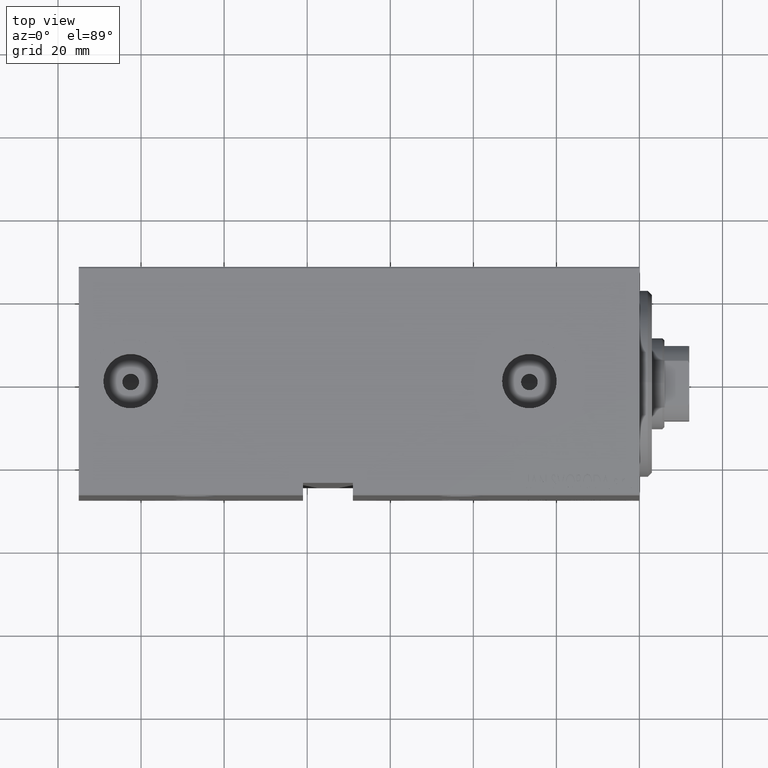
[diagram: clean part render]
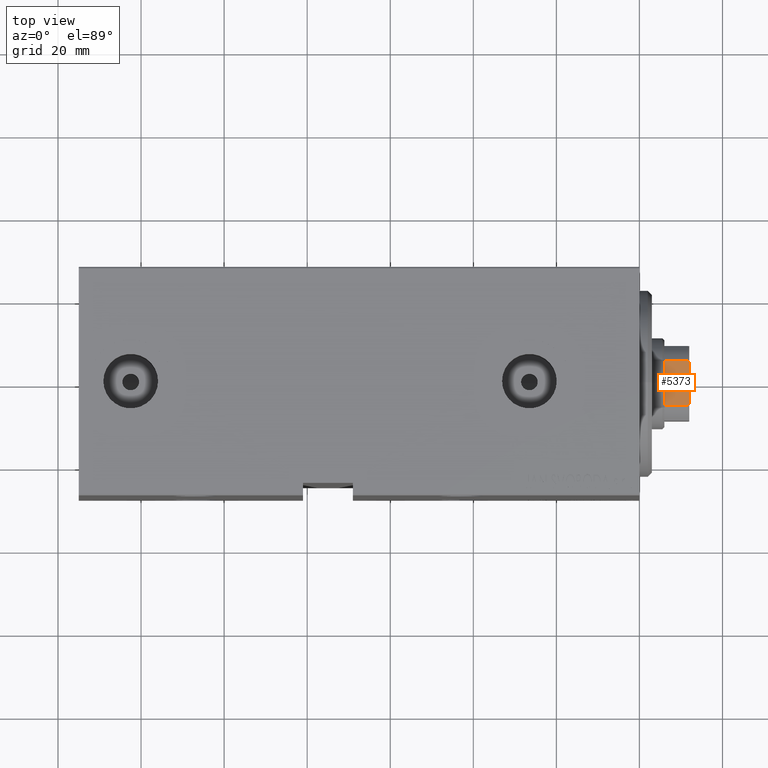
[diagram: same view with one face highlighted and labeled with its STEP entity id]
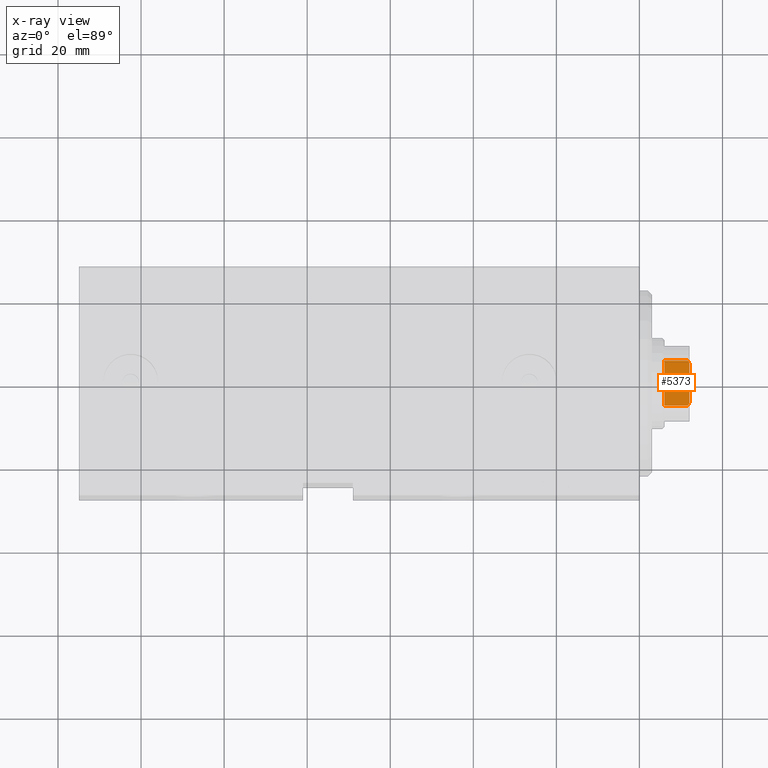
[diagram: x-ray of the same camera — body ghosted, the highlighted face saturated]
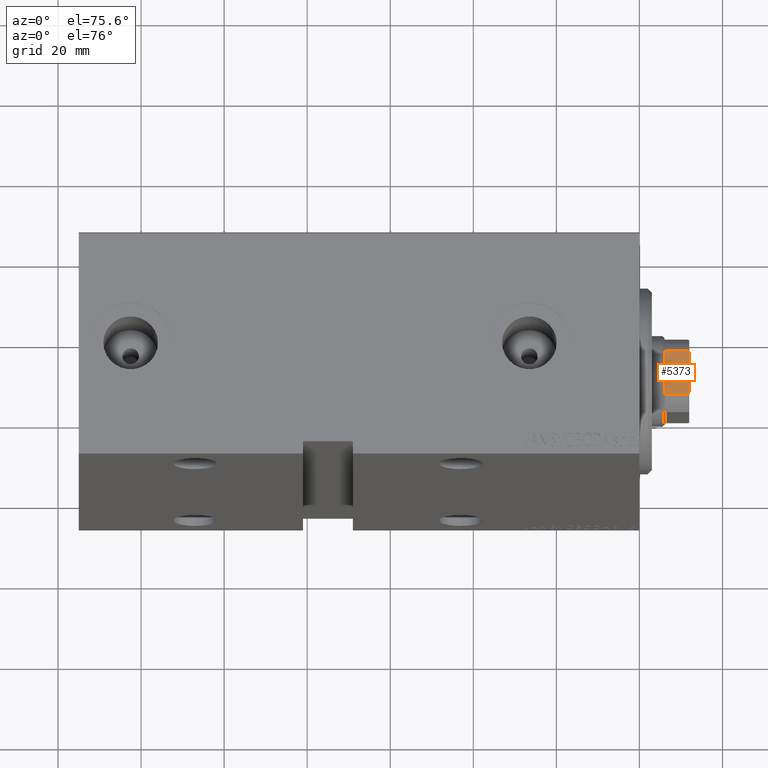
[diagram: same view with one face highlighted and labeled with its STEP entity id]
A machine part, top view. The second image highlights one B-rep face of the part: STEP entity #5373.
The next image is the same camera in x-ray: the body ghosted, the highlighted face saturated — about 0% of this face is hidden behind the body in this view.
A second angle (auxiliary view) of the same face is appended — the face is thin or edge-on in the first view.
In plain terms, the highlighted planar face has unit normal (-0, 0, -1).
Its self-contained STEP definition (entity closure, byte-faithful):
#1400 = VERTEX_POINT ( 'NONE', #24593 ) ;
#1778 = CARTESIAN_POINT ( 'NONE',  ( -8.999999999999998224, -4.799999999999915445, 137.0000000000000000 ) ) ;
#1904 = CARTESIAN_POINT ( 'NONE',  ( -9.000000000000001776, 4.799999999999957190, 137.0000000000000000 ) ) ;
#2665 = LINE ( 'NONE', #25762, #9990 ) ;
#3485 = EDGE_CURVE ( 'NONE', #12508, #26127, #2665, .T. ) ;
#4550 = CARTESIAN_POINT ( 'NONE',  ( -8.999999999999998224, -5.004607318780252001, 136.9037142029269205 ) ) ;
#5039 = VERTEX_POINT ( 'NONE', #1904 ) ;
#5199 = EDGE_CURVE ( 'NONE', #14898, #31492, #31317, .T. ) ;
#5373 = ADVANCED_FACE ( 'NONE', ( #9447 ), #17060, .F. ) ;
#5375 = CARTESIAN_POINT ( 'NONE',  ( -8.999999999999998224, 5.408326913195988794, -0.001000000000001000089 ) ) ;
#7232 = DIRECTION ( 'NONE',  ( -0.000000000000000000, -0.000000000000000000, 1.000000000000000000 ) ) ;
#8518 = VECTOR ( 'NONE', #15903, 1000.000000000000000 ) ;
#9447 = FACE_OUTER_BOUND ( 'NONE', #40251, .T. ) ;
#9596 = CARTESIAN_POINT ( 'NONE',  ( -9.000000000000000000, -5.408326913195987018, 136.6999999999999602 ) ) ;
#9664 = CARTESIAN_POINT ( 'NONE',  ( -8.999999999999998224, 5.408326913195988794, 136.6999999999999886 ) ) ;
#9979 = LINE ( 'NONE', #37900, #39284 ) ;
#9990 = VECTOR ( 'NONE', #43189, 1000.000000000000000 ) ;
#12508 = VERTEX_POINT ( 'NONE', #13112 ) ;
#13112 = CARTESIAN_POINT ( 'NONE',  ( -8.999999999999998224, 5.408326913195986130, 130.9999999999999716 ) ) ;
#13936 = ORIENTED_EDGE ( 'NONE', *, *, #39015, .T. ) ;
#14860 = CARTESIAN_POINT ( 'NONE',  ( -9.000000000000000000, -5.408326913195987018, 136.6999999999999602 ) ) ;
#14898 = VERTEX_POINT ( 'NONE', #9596 ) ;
#15903 = DIRECTION ( 'NONE',  ( -0.000000000000000000, -0.000000000000000000, 1.000000000000000000 ) ) ;
#17060 = PLANE ( 'NONE',  #39366 ) ;
#17457 = ORIENTED_EDGE ( 'NONE', *, *, #18744, .T. ) ;
#18439 = CARTESIAN_POINT ( 'NONE',  ( -8.999999999999998224, -4.799999999999915445, 137.0000000000000000 ) ) ;
#18744 = EDGE_CURVE ( 'NONE', #5039, #1400, #29214, .T. ) ;
#19623 = CARTESIAN_POINT ( 'NONE',  ( -9.000000000000000000, -5.408326913195987018, 130.9999999999999716 ) ) ;
#19753 = DIRECTION ( 'NONE',  ( 1.000000000000000000, 1.927470528863119049E-16, -0.000000000000000000 ) ) ;
#21142 = CARTESIAN_POINT ( 'NONE',  ( -9.000000000000000000, -5.207299490555445942, 136.8035449543006621 ) ) ;
#22411 = LINE ( 'NONE', #5375, #8518 ) ;
#24010 = DIRECTION ( 'NONE',  ( -1.927470528863119049E-16, 1.000000000000000000, 0.000000000000000000 ) ) ;
#24038 = VECTOR ( 'NONE', #43089, 1000.000000000000000 ) ;
#24593 = CARTESIAN_POINT ( 'NONE',  ( -8.999999999999998224, 5.408326913195988794, 136.6999999999999886 ) ) ;
#24876 = ORIENTED_EDGE ( 'NONE', *, *, #5199, .T. ) ;
#25762 = CARTESIAN_POINT ( 'NONE',  ( -9.000000000000001776, 8.999999999999998224, 131.0000000000000000 ) ) ;
#26127 = VERTEX_POINT ( 'NONE', #19623 ) ;
#28968 = EDGE_CURVE ( 'NONE', #5039, #31492, #43525, .T. ) ;
#29214 = B_SPLINE_CURVE_WITH_KNOTS ( 'NONE', 3,
 ( #43234, #43678, #40323, #9664 ),
 .UNSPECIFIED., .F., .F.,
 ( 4, 4 ),
 ( 0.000000000000000000, 0.0006782784334759783514 ),
 .UNSPECIFIED. ) ;
#29457 = CARTESIAN_POINT ( 'NONE',  ( -9.000000000000001776, 8.999999999999998224, 137.0000000000000000 ) ) ;
#31317 = B_SPLINE_CURVE_WITH_KNOTS ( 'NONE', 3,
 ( #14860, #21142, #4550, #18439 ),
 .UNSPECIFIED., .F., .F.,
 ( 4, 4 ),
 ( 0.000000000000000000, 0.0006782784334760239963 ),
 .UNSPECIFIED. ) ;
#31492 = VERTEX_POINT ( 'NONE', #1778 ) ;
#34064 = CARTESIAN_POINT ( 'NONE',  ( -9.000000000000001776, 8.999999999999998224, 137.0000000000000000 ) ) ;
#34430 = ORIENTED_EDGE ( 'NONE', *, *, #28968, .F. ) ;
#35104 = EDGE_CURVE ( 'NONE', #12508, #1400, #22411, .T. ) ;
#36793 = ORIENTED_EDGE ( 'NONE', *, *, #3485, .T. ) ;
#37900 = CARTESIAN_POINT ( 'NONE',  ( -9.000000000000000000, -5.408326913195987018, -0.001000000000001000089 ) ) ;
#38665 = ORIENTED_EDGE ( 'NONE', *, *, #35104, .F. ) ;
#39015 = EDGE_CURVE ( 'NONE', #26127, #14898, #9979, .T. ) ;
#39284 = VECTOR ( 'NONE', #7232, 1000.000000000000000 ) ;
#39366 = AXIS2_PLACEMENT_3D ( 'NONE', #34064, #19753, #24010 ) ;
#40251 = EDGE_LOOP ( 'NONE', ( #13936, #24876, #34430, #17457, #38665, #36793 ) ) ;
#40323 = CARTESIAN_POINT ( 'NONE',  ( -9.000000000000001776, 5.207299490555462818, 136.8035449543006621 ) ) ;
#43089 = DIRECTION ( 'NONE',  ( 1.927470528863119049E-16, -1.000000000000000000, 0.000000000000000000 ) ) ;
#43189 = DIRECTION ( 'NONE',  ( 1.927470528863119049E-16, -1.000000000000000000, 0.000000000000000000 ) ) ;
#43234 = CARTESIAN_POINT ( 'NONE',  ( -9.000000000000001776, 4.799999999999957190, 137.0000000000000000 ) ) ;
#43525 = LINE ( 'NONE', #29457, #24038 ) ;
#43678 = CARTESIAN_POINT ( 'NONE',  ( -9.000000000000001776, 5.004607318780273317, 136.9037142029269205 ) ) ;